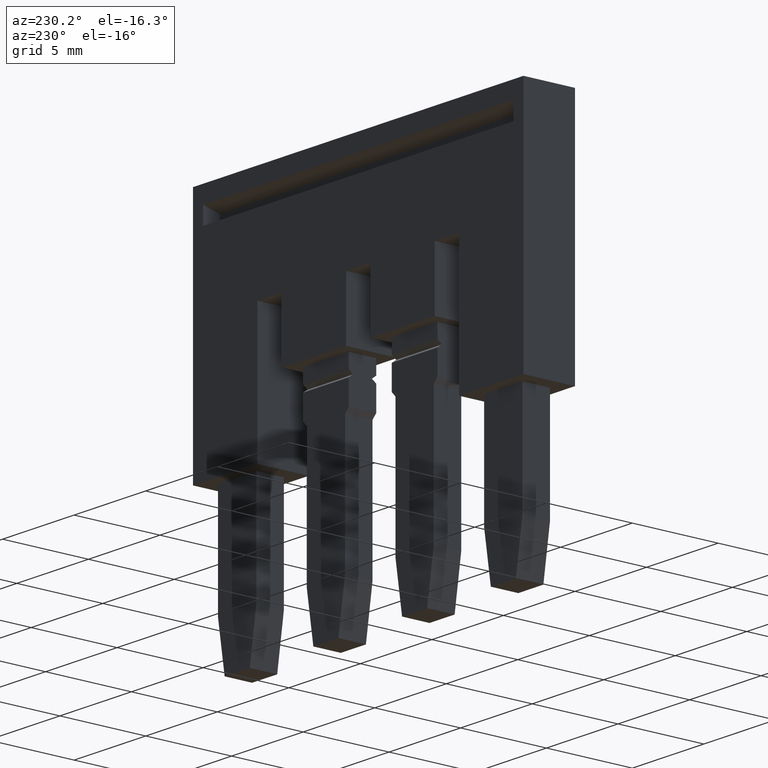
[diagram: clean part render]
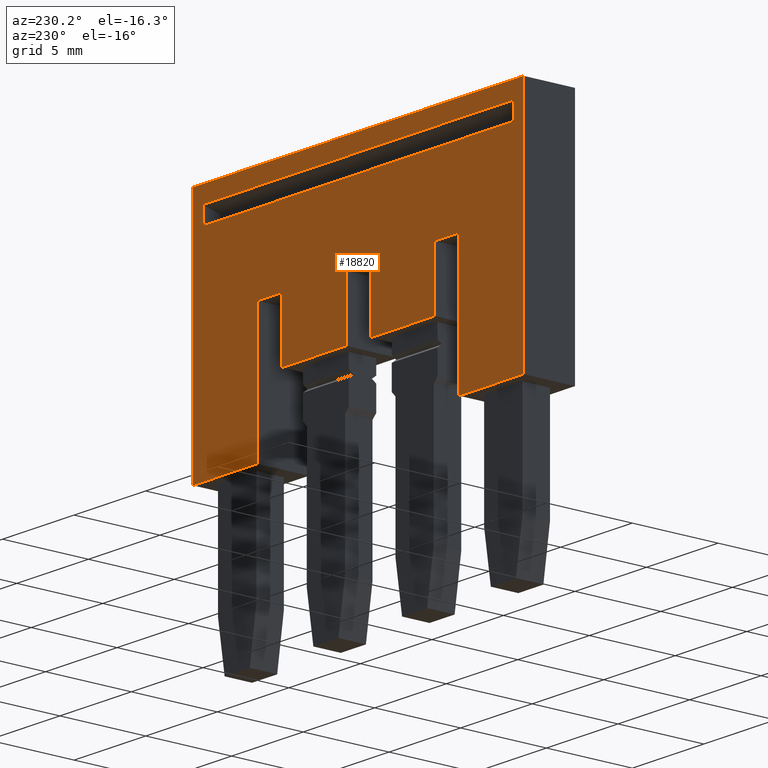
[diagram: same view with one face highlighted and labeled with its STEP entity id]
A machine part, auxiliary view. The second image highlights one B-rep face of the part: STEP entity #18820.
In plain terms, the highlighted planar face has unit normal (0, 1, -0).
Its self-contained STEP definition (entity closure, byte-faithful):
#120=CARTESIAN_POINT('',(2.60716722168536,-11.1389702342666,
38.3099999999988));
#130=VERTEX_POINT('',#120);
#280=CARTESIAN_POINT('',(2.60716722168536,-11.1389702342666,
60.0099999999988));
#290=VERTEX_POINT('',#280);
#320=CARTESIAN_POINT('',(2.60716722168536,-11.1389702342666,47.024984));
#330=DIRECTION('',(2.13821176807375E-50,0.,1.));
#340=VECTOR('',#330,1.);
#350=LINE('',#320,#340);
#360=EDGE_CURVE('',#130,#290,#350,.T.);
#930=CARTESIAN_POINT('',(2.60716722168536,-18.9750000000004,
43.8099999999988));
#940=VERTEX_POINT('',#930);
#970=CARTESIAN_POINT('',(2.60716722168536,-18.9750000000004,0.));
#980=DIRECTION('',(2.13821176807375E-50,0.,1.));
#990=VECTOR('',#980,1.);
#1000=LINE('',#970,#990);
#1010=CARTESIAN_POINT('',(2.60716722168536,-18.9750000000004,
48.3099999999988));
#1020=VERTEX_POINT('',#1010);
#1030=EDGE_CURVE('',#940,#1020,#1000,.T.);
#1400=CARTESIAN_POINT('',(2.60716722168536,-15.4750000000004,
42.1099999999988));
#1410=VERTEX_POINT('',#1400);
#1440=CARTESIAN_POINT('',(2.60716722168536,-15.4750000000004,40.874984))
;
#1450=DIRECTION('',(-2.13821176807375E-50,0.,-1.));
#1460=VECTOR('',#1450,1.);
#1470=LINE('',#1440,#1460);
#1480=CARTESIAN_POINT('',(2.60716722168536,-15.4750000000004,
43.8099999999988));
#1490=VERTEX_POINT('',#1480);
#1500=EDGE_CURVE('',#1490,#1410,#1470,.T.);
#1870=CARTESIAN_POINT('',(2.60716722168536,-9.1750000000004,
37.6099999999988));
#1880=VERTEX_POINT('',#1870);
#2030=CARTESIAN_POINT('',(2.60716722168536,-9.1750000000004,
60.7099999999988));
#2040=VERTEX_POINT('',#2030);
#2070=CARTESIAN_POINT('',(2.60716722168536,-9.1750000000004,47.024984));
#2080=DIRECTION('',(-2.13821176807375E-50,0.,-1.));
#2090=VECTOR('',#2080,1.);
#2100=LINE('',#2070,#2090);
#2110=EDGE_CURVE('',#2040,#1880,#2100,.T.);
#4640=CARTESIAN_POINT('',(2.60716722168536,0.,48.3099999999988));
#4650=DIRECTION('',(0.,-1.,0.));
#4660=VECTOR('',#4650,1.);
#4670=LINE('',#4640,#4660);
#4680=CARTESIAN_POINT('',(2.60716722168536,-15.4750000000004,
48.3099999999988));
#4690=VERTEX_POINT('',#4680);
#4700=EDGE_CURVE('',#4690,#1020,#4670,.T.);
#7940=CARTESIAN_POINT('',(2.60716722168536,-23.0750000000004,
42.1099999999988));
#7950=VERTEX_POINT('',#7940);
#7980=CARTESIAN_POINT('',(2.60716722168536,-12.605124,42.1099999999988))
;
#7990=DIRECTION('',(0.,-1.,0.));
#8000=VECTOR('',#7990,1.);
#8010=LINE('',#7980,#8000);
#8020=EDGE_CURVE('',#1410,#7950,#8010,.T.);
#8250=CARTESIAN_POINT('',(2.60716722168536,-15.4750000000004,
56.2099999999988));
#8260=VERTEX_POINT('',#8250);
#8290=CARTESIAN_POINT('',(2.60716722168536,-12.605124,56.2099999999988))
;
#8300=DIRECTION('',(0.,1.,0.));
#8310=VECTOR('',#8300,1.);
#8320=LINE('',#8290,#8310);
#8330=CARTESIAN_POINT('',(2.60716722168536,-23.0750000000004,
56.2099999999988));
#8340=VERTEX_POINT('',#8330);
#8350=EDGE_CURVE('',#8340,#8260,#8320,.T.);
#8970=CARTESIAN_POINT('',(2.60716722168536,-12.605124,38.3099999999988))
;
#8980=DIRECTION('',(0.,1.,0.));
#8990=VECTOR('',#8980,1.);
#9000=LINE('',#8970,#8990);
#9010=CARTESIAN_POINT('',(2.60716722168536,-10.1410254037848,
38.3099999999988));
#9020=VERTEX_POINT('',#9010);
#9030=EDGE_CURVE('',#130,#9020,#9000,.T.);
#10340=CARTESIAN_POINT('',(2.60716722168536,-18.9750000000004,
50.0099999999988));
#10350=VERTEX_POINT('',#10340);
#10430=CARTESIAN_POINT('',(2.60716722168536,-15.4750000000004,
50.0099999999988));
#10440=VERTEX_POINT('',#10430);
#10470=CARTESIAN_POINT('',(2.60716722168536,0.,50.0099999999988));
#10480=DIRECTION('',(0.,-1.,0.));
#10490=VECTOR('',#10480,1.);
#10500=LINE('',#10470,#10490);
#10510=EDGE_CURVE('',#10440,#10350,#10500,.T.);
#11050=CARTESIAN_POINT('',(2.60716722168536,-10.1410254037848,
60.0099999999988));
#11060=VERTEX_POINT('',#11050);
#11090=CARTESIAN_POINT('',(2.60716722168536,-12.605124,60.0099999999988)
);
#11100=DIRECTION('',(0.,-1.,0.));
#11110=VECTOR('',#11100,1.);
#11120=LINE('',#11090,#11110);
#11130=EDGE_CURVE('',#11060,#290,#11120,.T.);
#11300=CARTESIAN_POINT('',(2.60716722168536,-15.4750000000004,47.074984)
);
#11310=DIRECTION('',(-2.13821176807375E-50,0.,-1.));
#11320=VECTOR('',#11310,1.);
#11330=LINE('',#11300,#11320);
#11340=EDGE_CURVE('',#10440,#4690,#11330,.T.);
#11900=CARTESIAN_POINT('',(2.60716722168536,-23.0750000000004,
60.7099999999988));
#11910=VERTEX_POINT('',#11900);
#11940=CARTESIAN_POINT('',(2.60716722168536,-12.605124,60.7099999999988)
);
#11950=DIRECTION('',(0.,1.,0.));
#11960=VECTOR('',#11950,1.);
#11970=LINE('',#11940,#11960);
#11980=EDGE_CURVE('',#11910,#2040,#11970,.T.);
#13020=CARTESIAN_POINT('',(2.60716722168536,-12.605124,37.6099999999988)
);
#13030=DIRECTION('',(0.,1.,0.));
#13040=VECTOR('',#13030,1.);
#13050=LINE('',#13020,#13040);
#13060=CARTESIAN_POINT('',(2.60716722168536,-23.0750000000004,
37.6099999999988));
#13070=VERTEX_POINT('',#13060);
#13080=EDGE_CURVE('',#13070,#1880,#13050,.T.);
#13480=CARTESIAN_POINT('',(2.60716722168536,-23.0750000000004,47.024984)
);
#13490=DIRECTION('',(2.13821176807375E-50,0.,1.));
#13500=VECTOR('',#13490,1.);
#13510=LINE('',#13480,#13500);
#13520=EDGE_CURVE('',#13070,#7950,#13510,.T.);
#13720=CARTESIAN_POINT('',(2.60716722168536,0.,54.5099999999988));
#13730=DIRECTION('',(0.,-1.,0.));
#13740=VECTOR('',#13730,1.);
#13750=LINE('',#13720,#13740);
#13760=CARTESIAN_POINT('',(2.60716722168536,-15.4750000000004,
54.5099999999988));
#13770=VERTEX_POINT('',#13760);
#13780=CARTESIAN_POINT('',(2.60716722168536,-18.9750000000004,
54.5099999999988));
#13790=VERTEX_POINT('',#13780);
#13800=EDGE_CURVE('',#13770,#13790,#13750,.T.);
#15620=CARTESIAN_POINT('',(2.60716722168536,-18.9750000000004,0.));
#15630=DIRECTION('',(2.13821176807375E-50,0.,1.));
#15640=VECTOR('',#15630,1.);
#15650=LINE('',#15620,#15640);
#15660=EDGE_CURVE('',#10350,#13790,#15650,.T.);
#17530=CARTESIAN_POINT('',(2.60716722168536,-10.1410254037848,47.024984)
);
#17540=DIRECTION('',(-2.13821176807375E-50,0.,-1.));
#17550=VECTOR('',#17540,1.);
#17560=LINE('',#17530,#17550);
#17570=EDGE_CURVE('',#11060,#9020,#17560,.T.);
#18380=CARTESIAN_POINT('',(2.60716722168536,-10.416373989214,
34.5444836175016));
#18390=DIRECTION('',(-1.,0.,2.13821176807375E-50));
#18400=DIRECTION('',(0.,-1.,0.));
#18410=AXIS2_PLACEMENT_3D('',#18380,#18390,#18400);
#18420=PLANE('',#18410);
#18430=ORIENTED_EDGE('',*,*,#360,.F.);
#18440=ORIENTED_EDGE('',*,*,#11130,.T.);
#18450=ORIENTED_EDGE('',*,*,#17570,.F.);
#18460=ORIENTED_EDGE('',*,*,#9030,.T.);
#18470=EDGE_LOOP('',(#18460,#18450,#18440,#18430));
#18480=FACE_BOUND('',#18470,.T.);
#18490=ORIENTED_EDGE('',*,*,#11980,.T.);
#18500=CARTESIAN_POINT('',(2.60716722168536,-23.0750000000004,47.024984)
);
#18510=DIRECTION('',(2.13821176807375E-50,0.,1.));
#18520=VECTOR('',#18510,1.);
#18530=LINE('',#18500,#18520);
#18540=EDGE_CURVE('',#8340,#11910,#18530,.T.);
#18550=ORIENTED_EDGE('',*,*,#18540,.T.);
#18560=ORIENTED_EDGE('',*,*,#8350,.F.);
#18570=CARTESIAN_POINT('',(2.60716722168536,-15.4750000000004,47.074984)
);
#18580=DIRECTION('',(-2.13821176807375E-50,0.,-1.));
#18590=VECTOR('',#18580,1.);
#18600=LINE('',#18570,#18590);
#18610=EDGE_CURVE('',#8260,#13770,#18600,.T.);
#18620=ORIENTED_EDGE('',*,*,#18610,.F.);
#18630=ORIENTED_EDGE('',*,*,#13800,.F.);
#18640=ORIENTED_EDGE('',*,*,#15660,.T.);
#18650=ORIENTED_EDGE('',*,*,#10510,.T.);
#18660=ORIENTED_EDGE('',*,*,#11340,.F.);
#18670=ORIENTED_EDGE('',*,*,#4700,.F.);
#18680=ORIENTED_EDGE('',*,*,#1030,.T.);
#18690=CARTESIAN_POINT('',(2.60716722168536,0.,43.8099999999988));
#18700=DIRECTION('',(0.,1.,0.));
#18710=VECTOR('',#18700,1.);
#18720=LINE('',#18690,#18710);
#18730=EDGE_CURVE('',#940,#1490,#18720,.T.);
#18740=ORIENTED_EDGE('',*,*,#18730,.F.);
#18750=ORIENTED_EDGE('',*,*,#1500,.F.);
#18760=ORIENTED_EDGE('',*,*,#8020,.F.);
#18770=ORIENTED_EDGE('',*,*,#13520,.T.);
#18780=ORIENTED_EDGE('',*,*,#13080,.F.);
#18790=ORIENTED_EDGE('',*,*,#2110,.T.);
#18800=EDGE_LOOP('',(#18790,#18780,#18770,#18760,#18750,#18740,#18680,
#18670,#18660,#18650,#18640,#18630,#18620,#18560,#18550,#18490));
#18810=FACE_OUTER_BOUND('',#18800,.T.);
#18820=ADVANCED_FACE('',(#18480,#18810),#18420,.T.);